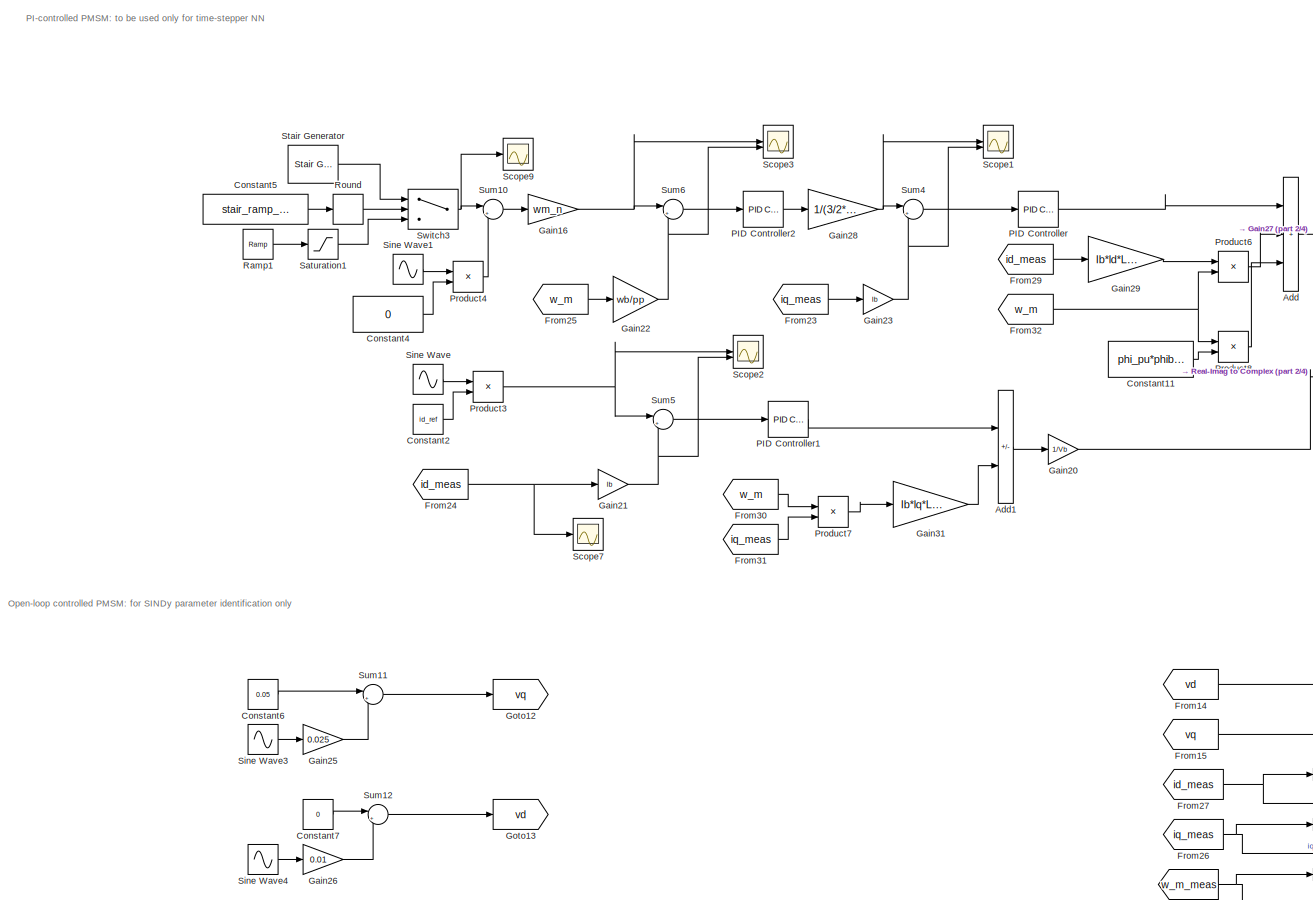
[diagram: root canvas - part 1/4, left side, full height]
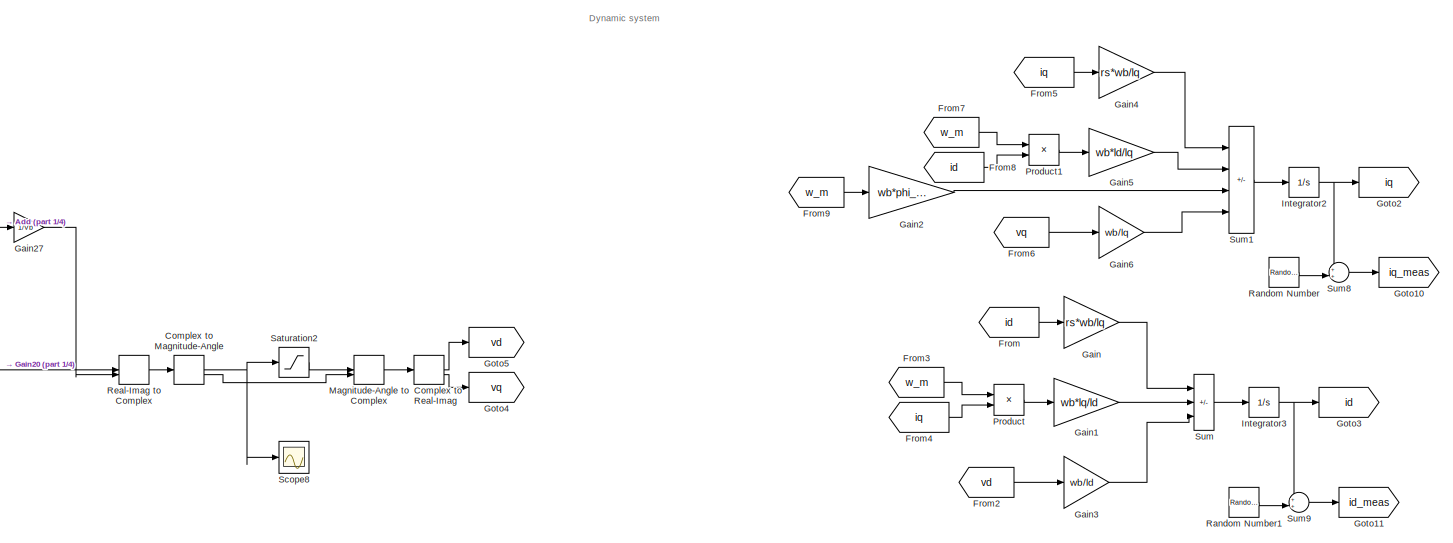
[diagram: root canvas - part 2/4, top right region]
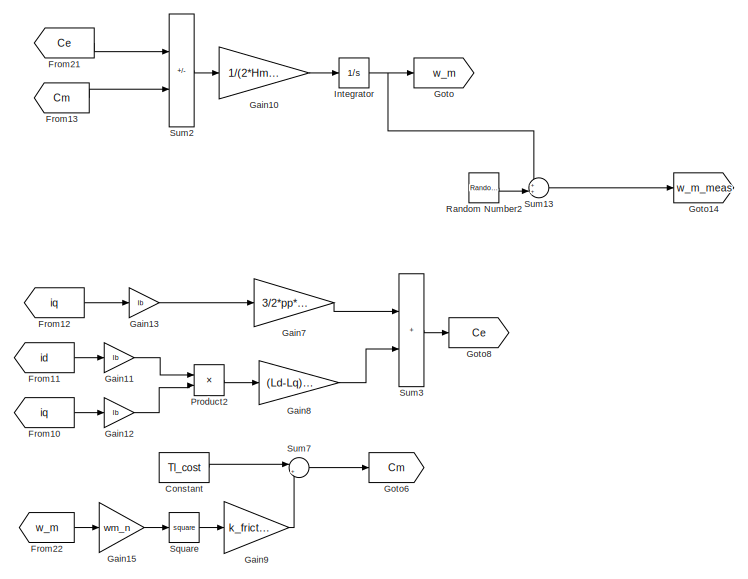
[diagram: root canvas - part 3/4, bottom right region]
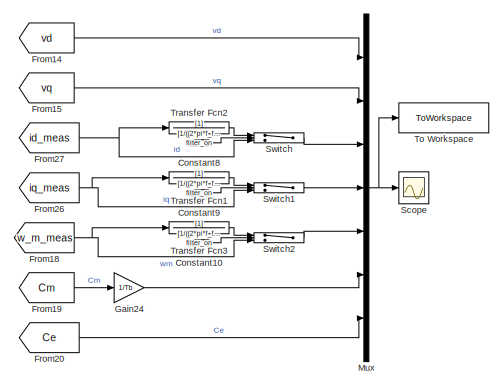
[diagram: root canvas - part 4/4, bottom center region]
MODEL slx_950fa85f4b07
KIND model
CONFIG AbsTol = auto
CONFIG EnableMultiTasking = off
CONFIG FixedStep = auto
CONFIG MaxStep = Max_step_size
CONFIG MinStep = auto
CONFIG RelTol = Relative_tolerance
CONFIG SampleTimeConstraint = Unconstrained
CONFIG SolverName = ode45
CONFIG StartTime = 0.0
CONFIG StopTime = 10.0
BLOCK [Sum] Add
  Commented = on
  IconShape = rectangular
  Inputs = +++
BLOCK [Sum] Add1
  Commented = on
  IconShape = rectangular
  Inputs = +-
BLOCK [ComplexToMagnitudeAngle] Complex to Magnitude-Angle
  Commented = on
BLOCK [ComplexToRealImag] Complex to Real-Imag
  Commented = on
BLOCK [Constant] Constant
  Value = Tl_cost
BLOCK [Constant] Constant10
  Value = filter_on
BLOCK [Constant] Constant11
  Commented = on
  Value = phi_pu*phib*pp*wb/pp
BLOCK [Constant] Constant2
  Commented = on
  Value = id_ref
BLOCK [Constant] Constant4
  Commented = on
  Value = 0
BLOCK [Constant] Constant5
  Commented = on
  Value = stair_ramp_selector
BLOCK [Constant] Constant6
  Value = 0.05
BLOCK [Constant] Constant7
  Value = 0
BLOCK [Constant] Constant8
  Value = filter_on
BLOCK [Constant] Constant9
  Value = filter_on
BLOCK [From] From
  GotoTag = id
BLOCK [From] From10
  GotoTag = iq
BLOCK [From] From11
  GotoTag = id
BLOCK [From] From12
  GotoTag = iq
BLOCK [From] From13
  GotoTag = Cm
BLOCK [From] From14
  GotoTag = vd
BLOCK [From] From15
  GotoTag = vq
BLOCK [From] From18
  GotoTag = w_m_meas
BLOCK [From] From19
  GotoTag = Cm
BLOCK [From] From2
  GotoTag = vd
BLOCK [From] From20
  GotoTag = Ce
BLOCK [From] From21
  GotoTag = Ce
BLOCK [From] From22
  GotoTag = w_m
BLOCK [From] From23
  Commented = on
  GotoTag = iq_meas
BLOCK [From] From24
  Commented = on
  GotoTag = id_meas
BLOCK [From] From25
  Commented = on
  GotoTag = w_m
BLOCK [From] From26
  GotoTag = iq_meas
BLOCK [From] From27
  GotoTag = id_meas
BLOCK [From] From29
  Commented = on
  GotoTag = id_meas
BLOCK [From] From3
  GotoTag = w_m
BLOCK [From] From30
  Commented = on
  GotoTag = w_m
BLOCK [From] From31
  Commented = on
  GotoTag = iq_meas
BLOCK [From] From32
  Commented = on
  GotoTag = w_m
BLOCK [From] From4
  GotoTag = iq
BLOCK [From] From5
  GotoTag = iq
BLOCK [From] From6
  GotoTag = vq
BLOCK [From] From7
  GotoTag = w_m
BLOCK [From] From8
  GotoTag = id
BLOCK [From] From9
  GotoTag = w_m
BLOCK [Gain] Gain
  Gain = rs*wb/lq
BLOCK [Gain] Gain1
  Gain = wb*lq/ld
BLOCK [Gain] Gain10
  Gain = 1/(2*Hm*Tb)
BLOCK [Gain] Gain11
  Gain = Ib
BLOCK [Gain] Gain12
  Gain = Ib
BLOCK [Gain] Gain13
  Gain = Ib
BLOCK [Gain] Gain15
  Gain = wm_n
BLOCK [Gain] Gain16
  Commented = on
  Gain = wm_n
BLOCK [Gain] Gain2
  Gain = wb*phi_pu/lq
BLOCK [Gain] Gain20
  Commented = on
  Gain = 1/Vb
BLOCK [Gain] Gain21
  Commented = on
  Gain = Ib
BLOCK [Gain] Gain22
  Commented = on
  Gain = wb/pp
BLOCK [Gain] Gain23
  Commented = on
  Gain = Ib
BLOCK [Gain] Gain24
  Gain = 1/Tb
BLOCK [Gain] Gain25
  Gain = 0.025
BLOCK [Gain] Gain26
  Gain = 0.01
BLOCK [Gain] Gain27
  Commented = on
  Gain = 1/Vb
BLOCK [Gain] Gain28
  Commented = on
  Gain = 1/(3/2*phi*pp)
BLOCK [Gain] Gain29
  Commented = on
  Gain = Ib*ld*Lb*pp*wb/pp
BLOCK [Gain] Gain3
  Gain = wb/ld
BLOCK [Gain] Gain31
  Commented = on
  Gain = Ib*lq*Lb*pp*wb/pp
BLOCK [Gain] Gain4
  Gain = rs*wb/lq
BLOCK [Gain] Gain5
  Gain = wb*ld/lq
BLOCK [Gain] Gain6
  Gain = wb/lq
BLOCK [Gain] Gain7
  Gain = 3/2*pp*phi
BLOCK [Gain] Gain8
  Gain = (Ld-Lq)*pp
BLOCK [Gain] Gain9
  Gain = k_friction
BLOCK [Goto] Goto
  GotoTag = w_m
BLOCK [Goto] Goto10
  GotoTag = iq_meas
BLOCK [Goto] Goto11
  GotoTag = id_meas
BLOCK [Goto] Goto12
  GotoTag = vq
BLOCK [Goto] Goto13
  GotoTag = vd
BLOCK [Goto] Goto14
  GotoTag = w_m_meas
BLOCK [Goto] Goto2
  GotoTag = iq
BLOCK [Goto] Goto3
  GotoTag = id
BLOCK [Goto] Goto4
  Commented = on
  GotoTag = vq
BLOCK [Goto] Goto5
  Commented = on
  GotoTag = vd
BLOCK [Goto] Goto6
  GotoTag = Cm
BLOCK [Goto] Goto8
  GotoTag = Ce
BLOCK [Integrator] Integrator
BLOCK [Integrator] Integrator2
BLOCK [Integrator] Integrator3
BLOCK [MagnitudeAngleToComplex] Magnitude-Angle to Complex
  Commented = on
BLOCK [Mux] Mux
  DisplayOption = bar
  Inputs = 7
BLOCK [Reference] PID Controller  REF=slpidlib/PID Controller
  Commented = on
  LibrarySourceBlock = simulink/Continuous/PID Controller
  SourceBlock = slpidlib/PID Controller
  SourceType = PID 1dof
BLOCK [Reference] PID Controller1  REF=slpidlib/PID Controller
  Commented = on
  LibrarySourceBlock = simulink/Continuous/PID Controller
  SourceBlock = slpidlib/PID Controller
  SourceType = PID 1dof
BLOCK [Reference] PID Controller2  REF=slpidlib/PID Controller
  Commented = on
  LibrarySourceBlock = simulink/Continuous/PID Controller
  SourceBlock = slpidlib/PID Controller
  SourceType = PID 1dof
BLOCK [Product] Product
BLOCK [Product] Product1
BLOCK [Product] Product2
BLOCK [Product] Product3
  Commented = on
BLOCK [Product] Product4
  Commented = on
BLOCK [Product] Product6
  Commented = on
BLOCK [Product] Product7
  Commented = on
BLOCK [Product] Product8
  Commented = on
BLOCK [Reference] Ramp1  REF=simulink/Sources/Ramp
  Commented = on
  SourceBlock = simulink/Sources/Ramp
  SourceType = Ramp
BLOCK [RandomNumber] Random Number
  SampleTime = t_step/10
  Variance = sig_i
BLOCK [RandomNumber] Random Number1
  SampleTime = t_step/10
  Variance = sig_i
BLOCK [RandomNumber] Random Number2
  SampleTime = t_step/10
  Variance = sig_w
BLOCK [RealImagToComplex] Real-Imag to Complex
  Commented = on
BLOCK [Rounding] Round
  Commented = on
  Operator = round
BLOCK [Saturate] Saturation1
  Commented = on
  UpperLimit = 0.4
BLOCK [Saturate] Saturation2
  Commented = on
  LowerLimit = -1
  UpperLimit = 1
BLOCK [Scope] Scope
  Floating = off
  NumInputPorts = 1
  ScopeSpecificationString = Simulink.scopes.TimeScopeBlockCfg('CurrentConfiguration', extmgr.ConfigurationSet(extmgr.Configuration('Core','General UI',true),extmgr.Configuration('Core','Source UI',true),extmgr.Configuration('Sources','WiredSimulink',true),extmgr.Configuration('Visuals','Time Domain',true,'SerializedDisplays',{struct('MinYLimReal','-10.87741','MaxYLimReal','22.84572','YLabelReal','','MinYLimMag','0.00000','Ma...<+1588ch>
BLOCK [Scope] Scope1
  Commented = on
  Floating = off
  NumInputPorts = 2
  ScopeSpecificationString = Simulink.scopes.TimeScopeBlockCfg('CurrentConfiguration', extmgr.ConfigurationSet(extmgr.Configuration('Core','General UI',true),extmgr.Configuration('Core','Source UI',true),extmgr.Configuration('Sources','WiredSimulink',true,'DataLoggingVariableName','ScopeData1'),extmgr.Configuration('Visuals','Time Domain',true,'SerializedDisplays',{struct('MinYLimReal','-16.84296','MaxYLimReal','27.73809','YL...<+1534ch>
BLOCK [Scope] Scope2
  Commented = on
  Floating = off
  NumInputPorts = 2
  ScopeSpecificationString = Simulink.scopes.TimeScopeBlockCfg('CurrentConfiguration', extmgr.ConfigurationSet(extmgr.Configuration('Core','General UI',true),extmgr.Configuration('Core','Source UI',true),extmgr.Configuration('Sources','WiredSimulink',true,'DataLoggingVariableName','ScopeData2'),extmgr.Configuration('Visuals','Time Domain',true,'SerializedDisplays',{struct('MinYLimReal','-0.00024','MaxYLimReal','0.00026','YLab...<+1519ch>
BLOCK [Scope] Scope3
  Commented = on
  Floating = off
  NumInputPorts = 2
  ScopeSpecificationString = Simulink.scopes.TimeScopeBlockCfg('CurrentConfiguration', extmgr.ConfigurationSet(extmgr.Configuration('Core','General UI',true),extmgr.Configuration('Core','Source UI',true),extmgr.Configuration('Sources','WiredSimulink',true,'DataLoggingVariableName','ScopeData3'),extmgr.Configuration('Visuals','Time Domain',true,'SerializedDisplays',{struct('MinYLimReal','-16.01209','MaxYLimReal','132.67881','Y...<+1485ch>
BLOCK [Scope] Scope7
  Commented = on
  Floating = off
  NumInputPorts = 1
  ScopeSpecificationString = Simulink.scopes.TimeScopeBlockCfg('CurrentConfiguration', extmgr.ConfigurationSet(extmgr.Configuration('Core','General UI',true),extmgr.Configuration('Core','Source UI',true),extmgr.Configuration('Sources','WiredSimulink',true,'DataLoggingVariableName','ScopeData4'),extmgr.Configuration('Visuals','Time Domain',true,'SerializedDisplays',{struct('MinYLimReal','-0.26118','MaxYLimReal','0.26112','YLab...<+1416ch>
BLOCK [Scope] Scope8
  Commented = on
  Floating = off
  NumInputPorts = 1
  ScopeSpecificationString = Simulink.scopes.TimeScopeBlockCfg('CurrentConfiguration', extmgr.ConfigurationSet(extmgr.Configuration('Core','General UI',true),extmgr.Configuration('Core','Source UI',true),extmgr.Configuration('Sources','WiredSimulink',true,'DataLoggingVariableName','ScopeData1'),extmgr.Configuration('Visuals','Time Domain',true,'SerializedDisplays',{struct('MinYLimReal','-0.16296','MaxYLimReal','1.46663','YLab...<+1461ch>
BLOCK [Scope] Scope9
  Commented = on
  Floating = off
  NumInputPorts = 1
  ScopeSpecificationString = Simulink.scopes.TimeScopeBlockCfg('CurrentConfiguration', extmgr.ConfigurationSet(extmgr.Configuration('Core','General UI',true),extmgr.Configuration('Core','Source UI',true),extmgr.Configuration('Sources','WiredSimulink',true,'DataLoggingVariableName','ScopeData1'),extmgr.Configuration('Visuals','Time Domain',true,'SerializedDisplays',{struct('MinYLimReal','-0.1','MaxYLimReal','0.9','YLabelReal',...<+1342ch>
BLOCK [Sin] Sine Wave
  Commented = on
  Frequency = 2*pi
  SampleTime = 0
BLOCK [Sin] Sine Wave1
  Commented = on
  Frequency = 2*pi
  SampleTime = 0
BLOCK [Sin] Sine Wave3
  Frequency = 2*pi*0.1
  SampleTime = 0
BLOCK [Sin] Sine Wave4
  Frequency = 2*pi*5
  NameLocation = right
  SampleTime = 0
BLOCK [Math] Square
  Operator = square
BLOCK [Reference] Stair Generator  REF=spsStairGeneratorLib/Stair
Generator
  Commented = on
  LibrarySourceBlock = sps_lib/Sources/Signal Generator Sources/Stair\nGenerator
  SourceBlock = spsStairGeneratorLib/Stair\nGenerator
  SourceType = Stair Generator
BLOCK [Sum] Sum
  IconShape = rectangular
  Inputs = -++
BLOCK [Sum] Sum1
  IconShape = rectangular
  Inputs = ---+
BLOCK [Sum] Sum10
  Commented = on
  Inputs = |++
BLOCK [Sum] Sum11
  Inputs = |++
BLOCK [Sum] Sum12
  Inputs = |++
BLOCK [Sum] Sum13
  Inputs = ++|
BLOCK [Sum] Sum2
  IconShape = rectangular
  Inputs = +-
BLOCK [Sum] Sum3
  IconShape = rectangular
BLOCK [Sum] Sum4
  Commented = on
  Inputs = |+-
BLOCK [Sum] Sum5
  Commented = on
  Inputs = |+-
BLOCK [Sum] Sum6
  Commented = on
  Inputs = |+-
BLOCK [Sum] Sum7
  Inputs = |++
BLOCK [Sum] Sum8
  Inputs = ++|
BLOCK [Sum] Sum9
  Inputs = ++|
BLOCK [Switch] Switch
  Criteria = u2 > Threshold
  InputSameDT = off
  SaturateOnIntegerOverflow = off
BLOCK [Switch] Switch1
  Criteria = u2 > Threshold
  InputSameDT = off
  SaturateOnIntegerOverflow = off
BLOCK [Switch] Switch2
  Criteria = u2 > Threshold
  InputSameDT = off
  SaturateOnIntegerOverflow = off
BLOCK [Switch] Switch3
  Commented = on
  Criteria = u2 > Threshold
  InputSameDT = off
  SaturateOnIntegerOverflow = off
  Threshold = 0.5
BLOCK [ToWorkspace] To Workspace
  FixptAsFi = on
  MaxDataPoints = inf
  SampleTime = t_step
  VariableName = simout
BLOCK [TransferFcn] Transfer Fcn1
  Denominator = [1/((2*pi*f_filter)^2) 1.414/(2*pi*f_filter) 1]
BLOCK [TransferFcn] Transfer Fcn2
  Denominator = [1/((2*pi*f_filter)^2) 1.414/(2*pi*f_filter) 1]
BLOCK [TransferFcn] Transfer Fcn3
  Denominator = [1/((2*pi*f_filter)^2) 1.414/(2*pi*f_filter) 1]
ANNOTATION (root): Dynamic system
ANNOTATION (root): Open-loop controlled PMSM: for SINDy parameter identification only
ANNOTATION (root): PI-controlled PMSM: to be used only for time-stepper NN
LINE Add1:1 -> Gain20:1
LINE Add:1 -> Gain27:1
NET Complex to Magnitude-Angle:1 -> Saturation2:1, Scope8:1
LINE Complex to Magnitude-Angle:2 -> Magnitude-Angle to Complex:2
LINE Complex to Real-Imag:1 -> Goto5:1
LINE Complex to Real-Imag:2 -> Goto4:1
LINE Constant10:1 -> Switch2:2
LINE Constant11:1 -> Product8:2
LINE Constant2:1 -> Product3:2
LINE Constant4:1 -> Product4:2
LINE Constant5:1 -> Round:1
LINE Constant6:1 -> Sum11:1
LINE Constant7:1 -> Sum12:1
LINE Constant8:1 -> Switch:2
LINE Constant9:1 -> Switch1:2
LINE Constant:1 -> Sum7:1
LINE From10:1 -> Gain12:1
LINE From11:1 -> Gain11:1
LINE From12:1 -> Gain13:1
LINE From13:1 -> Sum2:2
LINE From14:1 -> Mux:1
LINE From15:1 -> Mux:2
NET From18:1 -> Switch2:3, Transfer Fcn3:1
LINE From19:1 -> Gain24:1
LINE From20:1 -> Mux:7
LINE From21:1 -> Sum2:1
LINE From22:1 -> Gain15:1
LINE From23:1 -> Gain23:1
NET From24:1 -> Gain21:1, Scope7:1
LINE From25:1 -> Gain22:1
NET From26:1 -> Switch1:3, Transfer Fcn1:1
NET From27:1 -> Switch:3, Transfer Fcn2:1
LINE From29:1 -> Gain29:1
LINE From2:1 -> Gain3:1
LINE From30:1 -> Product7:1
LINE From31:1 -> Product7:2
NET From32:1 -> Product6:2, Product8:1
LINE From3:1 -> Product:1
LINE From4:1 -> Product:2
LINE From5:1 -> Gain4:1
LINE From6:1 -> Gain6:1
LINE From7:1 -> Product1:1
LINE From8:1 -> Product1:2
LINE From9:1 -> Gain2:1
LINE From:1 -> Gain:1
LINE Gain10:1 -> Integrator:1
LINE Gain11:1 -> Product2:1
LINE Gain12:1 -> Product2:2
LINE Gain13:1 -> Gain7:1
LINE Gain15:1 -> Square:1
NET Gain16:1 -> Scope3:1, Sum6:1
LINE Gain1:1 -> Sum:2
LINE Gain20:1 -> Real-Imag to Complex:1
NET Gain21:1 -> Scope2:2, Sum5:2
NET Gain22:1 -> Scope3:2, Sum6:2
NET Gain23:1 -> Scope1:2, Sum4:2
LINE Gain24:1 -> Mux:6
LINE Gain25:1 -> Sum11:2
LINE Gain26:1 -> Sum12:2
LINE Gain27:1 -> Real-Imag to Complex:2
NET Gain28:1 -> Scope1:1, Sum4:1
LINE Gain29:1 -> Product6:1
LINE Gain2:1 -> Sum1:3
LINE Gain31:1 -> Add1:2
LINE Gain3:1 -> Sum:3
LINE Gain4:1 -> Sum1:1
LINE Gain5:1 -> Sum1:2
LINE Gain6:1 -> Sum1:4
LINE Gain7:1 -> Sum3:1
LINE Gain8:1 -> Sum3:2
LINE Gain9:1 -> Sum7:2
LINE Gain:1 -> Sum:1
NET Integrator2:1 -> Goto2:1, Sum8:1
NET Integrator3:1 -> Goto3:1, Sum9:1
NET Integrator:1 -> Goto:1, Sum13:1
LINE Magnitude-Angle to Complex:1 -> Complex to Real-Imag:1
NET Mux:1 -> Scope:1, To Workspace:1
LINE PID Controller1:1 -> Add1:1
LINE PID Controller2:1 -> Gain28:1
LINE PID Controller:1 -> Add:1
LINE Product1:1 -> Gain5:1
LINE Product2:1 -> Gain8:1
NET Product3:1 -> Scope2:1, Sum5:1
LINE Product4:1 -> Sum10:2
LINE Product6:1 -> Add:2
LINE Product7:1 -> Gain31:1
LINE Product8:1 -> Add:3
LINE Product:1 -> Gain1:1
LINE Ramp1:1 -> Saturation1:1
LINE Random Number1:1 -> Sum9:2
LINE Random Number2:1 -> Sum13:2
LINE Random Number:1 -> Sum8:2
LINE Real-Imag to Complex:1 -> Complex to Magnitude-Angle:1
LINE Round:1 -> Switch3:2
LINE Saturation1:1 -> Switch3:3
LINE Saturation2:1 -> Magnitude-Angle to Complex:1
LINE Sine Wave1:1 -> Product4:1
LINE Sine Wave3:1 -> Gain25:1
LINE Sine Wave4:1 -> Gain26:1
LINE Sine Wave:1 -> Product3:1
LINE Square:1 -> Gain9:1
LINE Stair Generator:1 -> Switch3:1
LINE Sum10:1 -> Gain16:1
LINE Sum11:1 -> Goto12:1
LINE Sum12:1 -> Goto13:1
LINE Sum13:1 -> Goto14:1
LINE Sum1:1 -> Integrator2:1
LINE Sum2:1 -> Gain10:1
LINE Sum3:1 -> Goto8:1
LINE Sum4:1 -> PID Controller:1
LINE Sum5:1 -> PID Controller1:1
LINE Sum6:1 -> PID Controller2:1
LINE Sum7:1 -> Goto6:1
LINE Sum8:1 -> Goto10:1
LINE Sum9:1 -> Goto11:1
LINE Sum:1 -> Integrator3:1
LINE Switch1:1 -> Mux:4
LINE Switch2:1 -> Mux:5
NET Switch3:1 -> Scope9:1, Sum10:1
LINE Switch:1 -> Mux:3
LINE Transfer Fcn1:1 -> Switch1:1
LINE Transfer Fcn2:1 -> Switch:1
LINE Transfer Fcn3:1 -> Switch2:1
note: NET lines group one-source signal fan-out (src -> all destinations, sorted); 1:1 wires keep LINE
